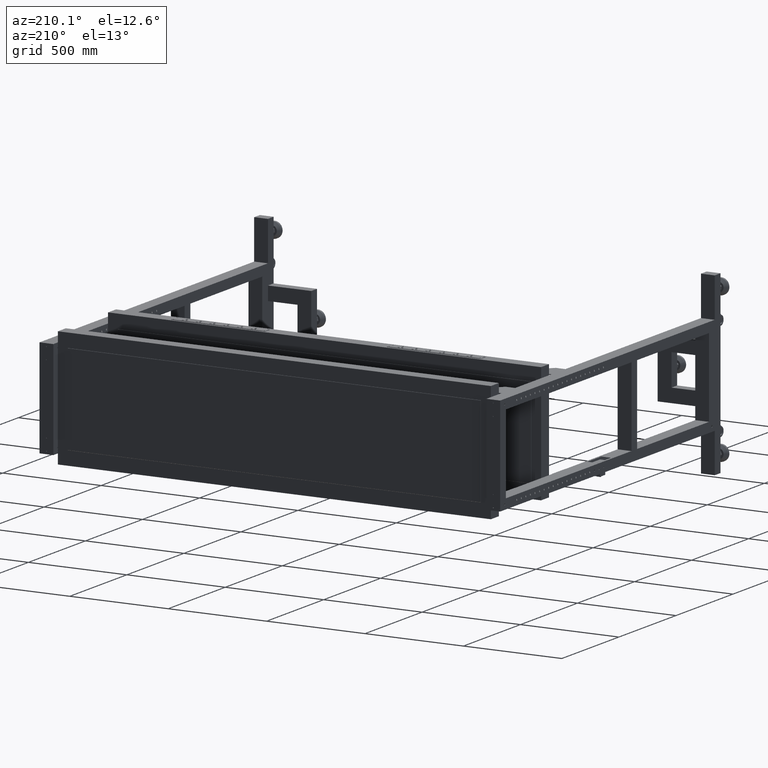
[diagram: clean part render]
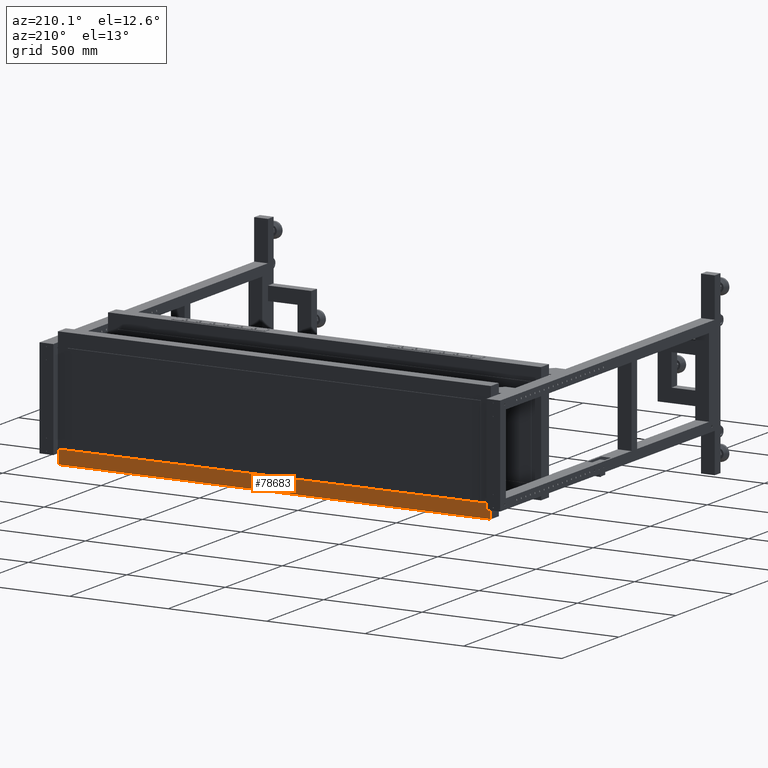
[diagram: same view with one face highlighted and labeled with its STEP entity id]
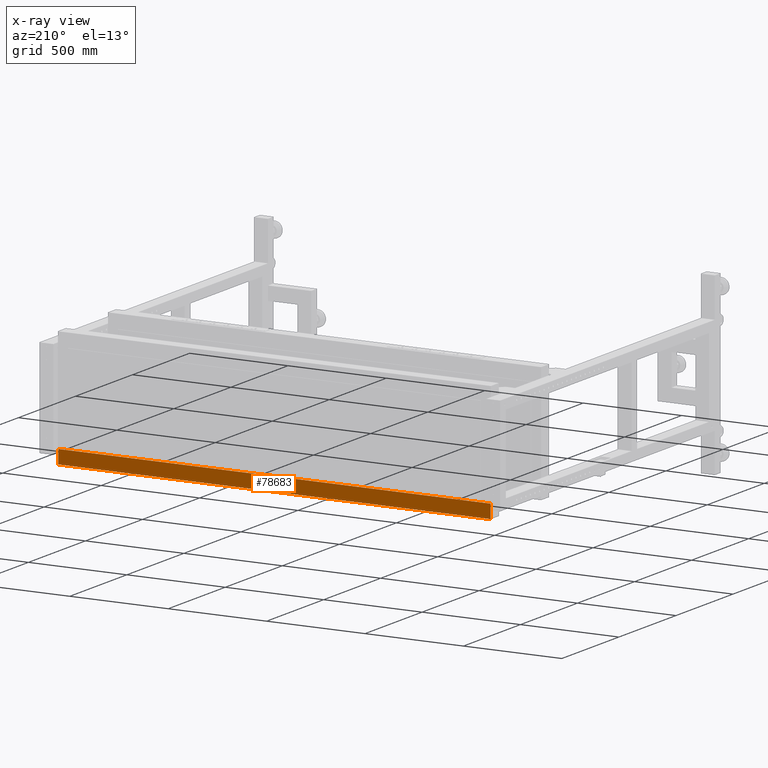
[diagram: x-ray of the same camera — body ghosted, the highlighted face saturated]
A machine part, auxiliary view. The second image highlights one B-rep face of the part: STEP entity #78683.
The next image is the same camera in x-ray: the body ghosted, the highlighted face saturated — about 0% of this face is hidden behind the body in this view.
In plain terms, the highlighted planar face has unit normal (0, -1, -0).
Its self-contained STEP definition (entity closure, byte-faithful):
#1240 = DIRECTION ( 'NONE',  ( 0.000000000000000000, -1.000000000000000000, -4.000000000000000311E-15 ) ) ;
#1811 = DIRECTION ( 'NONE',  ( 0.000000000000000000, 4.000000000000000311E-15, -1.000000000000000000 ) ) ;
#6765 = EDGE_CURVE ( 'NONE', #19450, #63955, #52533, .T. ) ;
#10377 = VECTOR ( 'NONE', #48200, 1000.000000000000000 ) ;
#10425 = CARTESIAN_POINT ( 'NONE',  ( -1266.172487437185964, 996.9410804020139949, -299.9999999999988631 ) ) ;
#11792 = LINE ( 'NONE', #24446, #10377 ) ;
#12564 = LINE ( 'NONE', #19084, #38952 ) ;
#13106 = EDGE_CURVE ( 'NONE', #63955, #35476, #12564, .T. ) ;
#14526 = ORIENTED_EDGE ( 'NONE', *, *, #53648, .T. ) ;
#16278 = VECTOR ( 'NONE', #45901, 1000.000000000000000 ) ;
#19084 = CARTESIAN_POINT ( 'NONE',  ( -1266.172487437185964, 996.9410804020139949, -299.9999999999988631 ) ) ;
#19450 = VERTEX_POINT ( 'NONE', #22598 ) ;
#22598 = CARTESIAN_POINT ( 'NONE',  ( -1266.172487437185964, 996.9410804020137675, -229.9999999999988631 ) ) ;
#24403 = VERTEX_POINT ( 'NONE', #48324 ) ;
#24446 = CARTESIAN_POINT ( 'NONE',  ( 929.8275125628159685, 996.9410804020143360, -299.9999999999988631 ) ) ;
#26882 = VECTOR ( 'NONE', #1811, 1000.000000000000000 ) ;
#28794 = AXIS2_PLACEMENT_3D ( 'NONE', #77309, #1240, #65037 ) ;
#32419 = LINE ( 'NONE', #38964, #16278 ) ;
#33013 = ORIENTED_EDGE ( 'NONE', *, *, #13106, .F. ) ;
#35476 = VERTEX_POINT ( 'NONE', #39520 ) ;
#38952 = VECTOR ( 'NONE', #80891, 1000.000000000000000 ) ;
#38964 = CARTESIAN_POINT ( 'NONE',  ( -1266.172487437185964, 996.9410804020137675, -229.9999999999988631 ) ) ;
#39520 = CARTESIAN_POINT ( 'NONE',  ( 929.8275125628159685, 996.9410804020143360, -299.9999999999988631 ) ) ;
#40081 = FACE_OUTER_BOUND ( 'NONE', #42316, .T. ) ;
#42316 = EDGE_LOOP ( 'NONE', ( #53266, #14526, #33013, #64276 ) ) ;
#45009 = PLANE ( 'NONE',  #28794 ) ;
#45901 = DIRECTION ( 'NONE',  ( 1.000000000000000000, 0.000000000000000000, 0.000000000000000000 ) ) ;
#46381 = CARTESIAN_POINT ( 'NONE',  ( -1266.172487437185964, 996.9410804020139949, -299.9999999999988631 ) ) ;
#47637 = EDGE_CURVE ( 'NONE', #19450, #24403, #32419, .T. ) ;
#48200 = DIRECTION ( 'NONE',  ( -1.061444687115305305E-30, 4.000000000000000311E-15, -1.000000000000000000 ) ) ;
#48324 = CARTESIAN_POINT ( 'NONE',  ( 929.8275125628159685, 996.9410804020141086, -229.9999999999988631 ) ) ;
#52533 = LINE ( 'NONE', #46381, #26882 ) ;
#53266 = ORIENTED_EDGE ( 'NONE', *, *, #47637, .T. ) ;
#53648 = EDGE_CURVE ( 'NONE', #24403, #35476, #11792, .T. ) ;
#63955 = VERTEX_POINT ( 'NONE', #10425 ) ;
#64276 = ORIENTED_EDGE ( 'NONE', *, *, #6765, .F. ) ;
#65037 = DIRECTION ( 'NONE',  ( 1.000000000000000000, 0.000000000000000000, 0.000000000000000000 ) ) ;
#77309 = CARTESIAN_POINT ( 'NONE',  ( -1266.172487437185964, 996.9410804020139949, -299.9999999999988631 ) ) ;
#78683 = ADVANCED_FACE ( 'NONE', ( #40081 ), #45009, .F. ) ;
#80891 = DIRECTION ( 'NONE',  ( 1.000000000000000000, 0.000000000000000000, 0.000000000000000000 ) ) ;